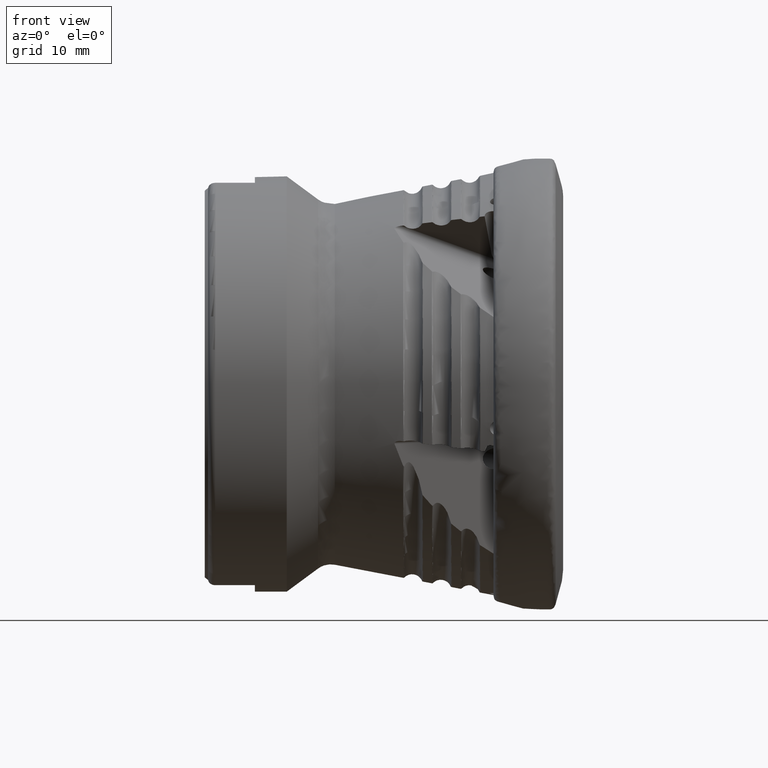
[diagram: clean part render]
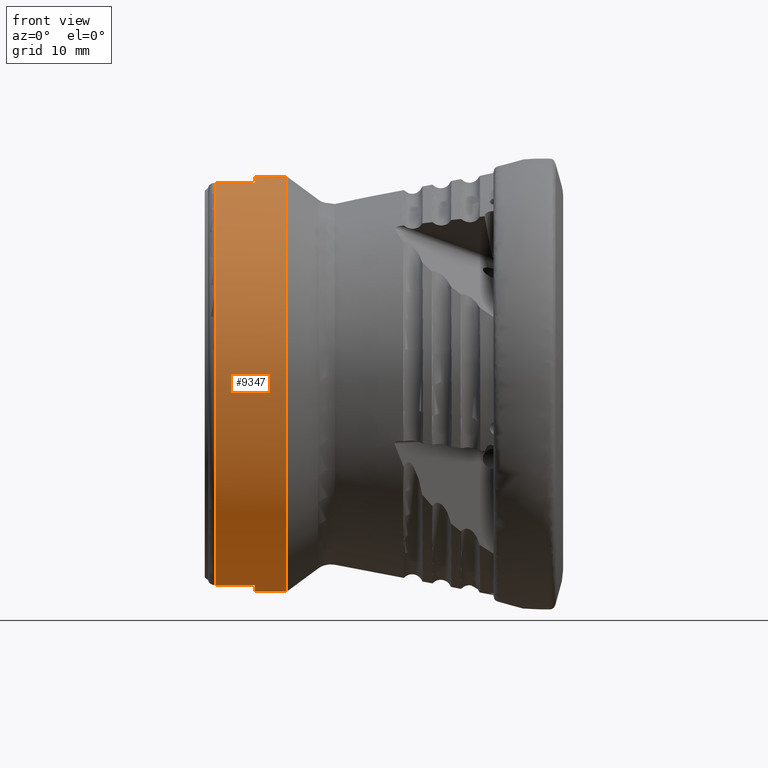
[diagram: same view with one face highlighted and labeled with its STEP entity id]
A machine part, front view. The second image highlights one B-rep face of the part: STEP entity #9347.
In plain terms, the highlighted cylindrical surface (bore or boss wall) has radius 29 mm, axis along (1, -0, -0).
Its self-contained STEP definition (entity closure, byte-faithful):
#158 = ORIENTED_EDGE ( 'NONE', *, *, #514, .T. ) ;
#180 = CARTESIAN_POINT ( 'NONE',  ( 0.0000000000000000000, 7.162962588931239200, -28.10145844879891200 ) ) ;
#345 = EDGE_LOOP ( 'NONE', ( #6120 ) ) ;
#514 = EDGE_CURVE ( 'NONE', #8782, #5824, #7303, .T. ) ;
#552 = DIRECTION ( 'NONE',  ( 1.000000000000000000, -0.0000000000000000000, -0.0000000000000000000 ) ) ;
#575 = DIRECTION ( 'NONE',  ( 1.000000000000000000, -0.0000000000000000000, -0.0000000000000000000 ) ) ;
#750 = CARTESIAN_POINT ( 'NONE',  ( -47.54999999999999700, 0.0000000000000000000, 0.0000000000000000000 ) ) ;
#848 = CIRCLE ( 'NONE', #9000, 28.99999999999999600 ) ;
#965 = CYLINDRICAL_SURFACE ( 'NONE', #6061, 28.99999999999999600 ) ;
#976 = CARTESIAN_POINT ( 'NONE',  ( -47.54999999999999700, 7.162962588931237400, -28.10145844879891200 ) ) ;
#1133 = DIRECTION ( 'NONE',  ( -1.000000000000000000, -0.0000000000000000000, -0.0000000000000000000 ) ) ;
#1316 = CARTESIAN_POINT ( 'NONE',  ( -41.99999999999999300, -7.162962588931217000, 28.10145844879891200 ) ) ;
#1352 = CIRCLE ( 'NONE', #7913, 28.99999999999999300 ) ;
#1422 = DIRECTION ( 'NONE',  ( -1.000000000000000000, -0.0000000000000000000, -0.0000000000000000000 ) ) ;
#1542 = DIRECTION ( 'NONE',  ( 0.0000000000000000000, 0.0000000000000000000, -1.000000000000000000 ) ) ;
#1673 = ORIENTED_EDGE ( 'NONE', *, *, #2607, .T. ) ;
#1715 = VERTEX_POINT ( 'NONE', #6611 ) ;
#2291 = EDGE_CURVE ( 'NONE', #10104, #8296, #7045, .T. ) ;
#2301 = CIRCLE ( 'NONE', #10437, 28.99999999999999600 ) ;
#2442 = CARTESIAN_POINT ( 'NONE',  ( -4.363080244708006400E-030, -7.162962588931206300, 28.10145844879891500 ) ) ;
#2573 = LINE ( 'NONE', #8658, #6664 ) ;
#2607 = EDGE_CURVE ( 'NONE', #8296, #5922, #8168, .T. ) ;
#2863 = CARTESIAN_POINT ( 'NONE',  ( -37.54999999999999700, 0.0000000000000000000, -28.99999999999999300 ) ) ;
#2979 = EDGE_CURVE ( 'NONE', #5824, #3014, #2301, .T. ) ;
#3014 = VERTEX_POINT ( 'NONE', #3999 ) ;
#3067 = AXIS2_PLACEMENT_3D ( 'NONE', #5999, #1133, #6825 ) ;
#3132 = VECTOR ( 'NONE', #575, 1000.000000000000000 ) ;
#3156 = VERTEX_POINT ( 'NONE', #4137 ) ;
#3366 = FACE_OUTER_BOUND ( 'NONE', #345, .T. ) ;
#3745 = CARTESIAN_POINT ( 'NONE',  ( -37.54999999999999700, 0.0000000000000000000, 0.0000000000000000000 ) ) ;
#3956 = CIRCLE ( 'NONE', #3067, 28.99999999999999600 ) ;
#3986 = EDGE_CURVE ( 'Kante61', #10104, #3156, #3956, .T. ) ;
#3999 = CARTESIAN_POINT ( 'NONE',  ( -47.54999999999999700, 7.162962588931237400, 28.10145844879890500 ) ) ;
#4137 = CARTESIAN_POINT ( 'NONE',  ( -41.99999999999999300, 7.162962588931238300, 28.10145844879890800 ) ) ;
#4556 = DIRECTION ( 'NONE',  ( 0.0000000000000000000, 0.0000000000000000000, -1.000000000000000000 ) ) ;
#4758 = CARTESIAN_POINT ( 'NONE',  ( -47.54999999999999700, -7.162962588931217800, 28.10145844879891200 ) ) ;
#4852 = VECTOR ( 'NONE', #8979, 1000.000000000000000 ) ;
#5118 = ORIENTED_EDGE ( 'NONE', *, *, #9009, .F. ) ;
#5131 = VECTOR ( 'NONE', #7486, 1000.000000000000000 ) ;
#5134 = CARTESIAN_POINT ( 'NONE',  ( -41.99999999999999300, 7.162962588931238300, -28.10145844879890800 ) ) ;
#5294 = VERTEX_POINT ( 'NONE', #2863 ) ;
#5414 = CARTESIAN_POINT ( 'NONE',  ( -47.54999999999999700, 0.0000000000000000000, 0.0000000000000000000 ) ) ;
#5824 = VERTEX_POINT ( 'NONE', #976 ) ;
#5922 = VERTEX_POINT ( 'NONE', #9810 ) ;
#5999 = CARTESIAN_POINT ( 'NONE',  ( -41.99999999999999300, 0.0000000000000000000, 0.0000000000000000000 ) ) ;
#6061 = AXIS2_PLACEMENT_3D ( 'NONE', #6907, #7759, #6873 ) ;
#6120 = ORIENTED_EDGE ( 'NONE', *, *, #8901, .F. ) ;
#6232 = DIRECTION ( 'NONE',  ( 0.0000000000000000000, 0.0000000000000000000, -1.000000000000000000 ) ) ;
#6267 = CARTESIAN_POINT ( 'NONE',  ( -3.849776686507065000E-030, -7.162962588931214300, -28.10145844879891500 ) ) ;
#6309 = CARTESIAN_POINT ( 'NONE',  ( -41.99999999999999300, 0.0000000000000000000, 0.0000000000000000000 ) ) ;
#6345 = ORIENTED_EDGE ( 'NONE', *, *, #8190, .T. ) ;
#6422 = DIRECTION ( 'NONE',  ( 1.000000000000000000, -0.0000000000000000000, -0.0000000000000000000 ) ) ;
#6494 = ORIENTED_EDGE ( 'NONE', *, *, #2979, .T. ) ;
#6611 = CARTESIAN_POINT ( 'NONE',  ( -41.99999999999999300, -7.162962588931226700, -28.10145844879891200 ) ) ;
#6664 = VECTOR ( 'NONE', #7057, 1000.000000000000000 ) ;
#6825 = DIRECTION ( 'NONE',  ( 0.0000000000000000000, 3.552713678800500900E-015, -1.000000000000000000 ) ) ;
#6873 = DIRECTION ( 'NONE',  ( 0.0000000000000000000, 0.0000000000000000000, -1.000000000000000000 ) ) ;
#6907 = CARTESIAN_POINT ( 'NONE',  ( 0.0000000000000000000, 0.0000000000000000000, 0.0000000000000000000 ) ) ;
#7045 = LINE ( 'NONE', #2442, #4852 ) ;
#7057 = DIRECTION ( 'NONE',  ( 1.000000000000000000, -0.0000000000000000000, -0.0000000000000000000 ) ) ;
#7138 = DIRECTION ( 'NONE',  ( 0.0000000000000000000, 0.0000000000000000000, -1.000000000000000000 ) ) ;
#7303 = LINE ( 'NONE', #180, #5131 ) ;
#7351 = ORIENTED_EDGE ( 'NONE', *, *, #3986, .F. ) ;
#7486 = DIRECTION ( 'NONE',  ( -1.000000000000000000, 0.0000000000000000000, 0.0000000000000000000 ) ) ;
#7508 = ORIENTED_EDGE ( 'NONE', *, *, #2291, .T. ) ;
#7759 = DIRECTION ( 'NONE',  ( 1.000000000000000000, -0.0000000000000000000, -0.0000000000000000000 ) ) ;
#7913 = AXIS2_PLACEMENT_3D ( 'NONE', #3745, #9445, #4556 ) ;
#8168 = CIRCLE ( 'NONE', #8991, 28.99999999999999600 ) ;
#8190 = EDGE_CURVE ( 'NONE', #3014, #3156, #2573, .T. ) ;
#8296 = VERTEX_POINT ( 'NONE', #4758 ) ;
#8575 = EDGE_LOOP ( 'NONE', ( #6494, #6345, #7351, #7508, #1673, #8769, #5118, #158 ) ) ;
#8658 = CARTESIAN_POINT ( 'NONE',  ( 0.0000000000000000000, 7.162962588931239200, 28.10145844879891200 ) ) ;
#8769 = ORIENTED_EDGE ( 'NONE', *, *, #9393, .T. ) ;
#8782 = VERTEX_POINT ( 'NONE', #5134 ) ;
#8901 = EDGE_CURVE ( 'NONE', #5294, #5294, #1352, .T. ) ;
#8979 = DIRECTION ( 'NONE',  ( -1.000000000000000000, 0.0000000000000000000, 0.0000000000000000000 ) ) ;
#8991 = AXIS2_PLACEMENT_3D ( 'NONE', #5414, #552, #6232 ) ;
#9000 = AXIS2_PLACEMENT_3D ( 'NONE', #6309, #1422, #7138 ) ;
#9009 = EDGE_CURVE ( 'Kante68', #8782, #1715, #848, .T. ) ;
#9347 = ADVANCED_FACE ( 'Fl�che8', ( #9644, #3366 ), #965, .T. ) ;
#9377 = LINE ( 'NONE', #6267, #3132 ) ;
#9393 = EDGE_CURVE ( 'NONE', #5922, #1715, #9377, .T. ) ;
#9445 = DIRECTION ( 'NONE',  ( 1.000000000000000000, -0.0000000000000000000, -0.0000000000000000000 ) ) ;
#9644 = FACE_OUTER_BOUND ( 'NONE', #8575, .T. ) ;
#9810 = CARTESIAN_POINT ( 'NONE',  ( -47.54999999999999700, -7.162962588931226700, -28.10145844879890800 ) ) ;
#10104 = VERTEX_POINT ( 'NONE', #1316 ) ;
#10437 = AXIS2_PLACEMENT_3D ( 'NONE', #750, #6422, #1542 ) ;